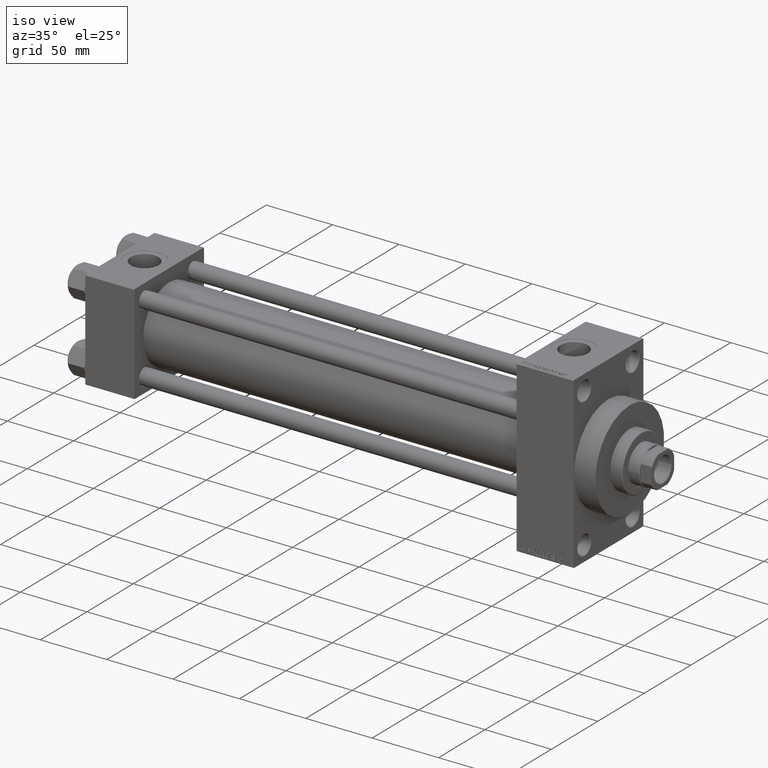
[diagram: clean part render]
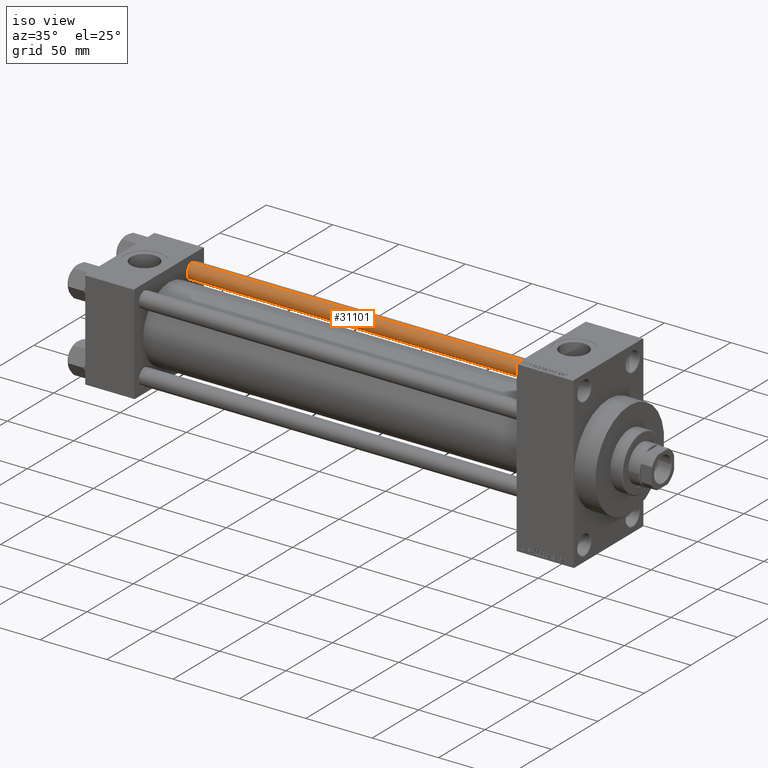
[diagram: same view with one face highlighted and labeled with its STEP entity id]
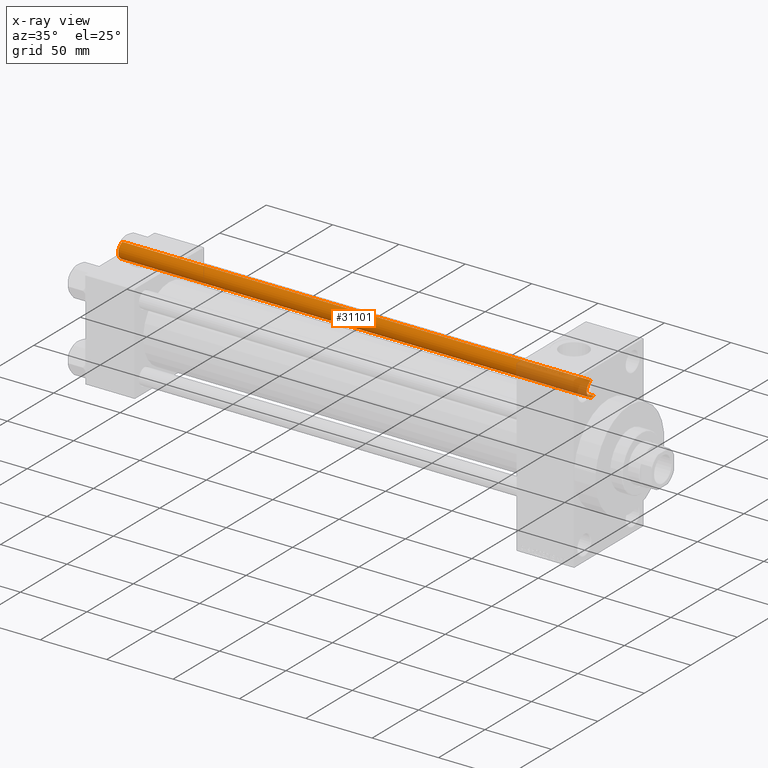
[diagram: x-ray of the same camera — body ghosted, the highlighted face saturated]
A machine part, iso view. The second image highlights one B-rep face of the part: STEP entity #31101.
The next image is the same camera in x-ray: the body ghosted, the highlighted face saturated — about 15% of this face is hidden behind the body in this view.
In plain terms, the highlighted cylindrical surface (edge-blend (fillet) strip) has radius 6 mm, axis along (-1, -0, 0).
Its self-contained STEP definition (entity closure, byte-faithful):
#4427 = LINE ( 'NONE', #18888, #13438 ) ;
#4534 = DIRECTION ( 'NONE',  ( -0.000000000000000000, -0.000000000000000000, 1.000000000000000000 ) ) ;
#4794 = VERTEX_POINT ( 'NONE', #31750 ) ;
#4974 = DIRECTION ( 'NONE',  ( 1.000000000000000000, 0.000000000000000000, 0.000000000000000000 ) ) ;
#6826 = DIRECTION ( 'NONE',  ( -0.000000000000000000, -0.000000000000000000, -1.000000000000000000 ) ) ;
#7069 = CYLINDRICAL_SURFACE ( 'NONE', #33794, 6.000000000000000888 ) ;
#8373 = VERTEX_POINT ( 'NONE', #26429 ) ;
#8453 = ORIENTED_EDGE ( 'NONE', *, *, #23254, .T. ) ;
#8727 = DIRECTION ( 'NONE',  ( 0.000000000000000000, 0.000000000000000000, -1.000000000000000000 ) ) ;
#9909 = AXIS2_PLACEMENT_3D ( 'NONE', #34849, #8727, #4974 ) ;
#11373 = CARTESIAN_POINT ( 'NONE',  ( 6.000000000000000888, 7.347880794884120722E-16, 0.5000000000000559552 ) ) ;
#12018 = CARTESIAN_POINT ( 'NONE',  ( 6.000000000000000888, 7.347880794884120722E-16, 354.0000000000000000 ) ) ;
#13438 = VECTOR ( 'NONE', #22606, 1000.000000000000000 ) ;
#14889 = ORIENTED_EDGE ( 'NONE', *, *, #31719, .T. ) ;
#15444 = CIRCLE ( 'NONE', #9909, 6.000000000000000888 ) ;
#17798 = FACE_OUTER_BOUND ( 'NONE', #34152, .T. ) ;
#18168 = CIRCLE ( 'NONE', #20580, 6.000000000000000888 ) ;
#18888 = CARTESIAN_POINT ( 'NONE',  ( -6.000000000000000888, 0.000000000000000000, 354.0000000000000000 ) ) ;
#20580 = AXIS2_PLACEMENT_3D ( 'NONE', #23196, #4534, #46375 ) ;
#20982 = VECTOR ( 'NONE', #27445, 1000.000000000000000 ) ;
#22606 = DIRECTION ( 'NONE',  ( -0.000000000000000000, -0.000000000000000000, -1.000000000000000000 ) ) ;
#23196 = CARTESIAN_POINT ( 'NONE',  ( 0.000000000000000000, 0.000000000000000000, 0.5000000000000559552 ) ) ;
#23254 = EDGE_CURVE ( 'NONE', #4794, #43214, #18168, .T. ) ;
#24659 = EDGE_CURVE ( 'NONE', #8373, #4794, #4427, .T. ) ;
#26429 = CARTESIAN_POINT ( 'NONE',  ( -6.000000000000000888, 0.000000000000000000, 353.5000000000000000 ) ) ;
#27193 = LINE ( 'NONE', #12018, #20982 ) ;
#27445 = DIRECTION ( 'NONE',  ( -0.000000000000000000, -0.000000000000000000, -1.000000000000000000 ) ) ;
#27751 = EDGE_CURVE ( 'NONE', #40157, #43214, #27193, .T. ) ;
#31101 = ADVANCED_FACE ( 'NONE', ( #17798 ), #7069, .T. ) ;
#31719 = EDGE_CURVE ( 'NONE', #40157, #8373, #15444, .T. ) ;
#31750 = CARTESIAN_POINT ( 'NONE',  ( -6.000000000000000888, 0.000000000000000000, 0.5000000000000559552 ) ) ;
#32921 = ORIENTED_EDGE ( 'NONE', *, *, #24659, .T. ) ;
#32959 = DIRECTION ( 'NONE',  ( -1.000000000000000000, 0.000000000000000000, 0.000000000000000000 ) ) ;
#33794 = AXIS2_PLACEMENT_3D ( 'NONE', #45150, #6826, #32959 ) ;
#34152 = EDGE_LOOP ( 'NONE', ( #43294, #14889, #32921, #8453 ) ) ;
#34849 = CARTESIAN_POINT ( 'NONE',  ( 0.000000000000000000, 0.000000000000000000, 353.5000000000000000 ) ) ;
#39205 = CARTESIAN_POINT ( 'NONE',  ( 6.000000000000000888, 7.347880794884120722E-16, 353.5000000000000000 ) ) ;
#40157 = VERTEX_POINT ( 'NONE', #39205 ) ;
#43214 = VERTEX_POINT ( 'NONE', #11373 ) ;
#43294 = ORIENTED_EDGE ( 'NONE', *, *, #27751, .F. ) ;
#45150 = CARTESIAN_POINT ( 'NONE',  ( 0.000000000000000000, 0.000000000000000000, 354.0000000000000000 ) ) ;
#46375 = DIRECTION ( 'NONE',  ( 1.000000000000000000, 0.000000000000000000, 0.000000000000000000 ) ) ;